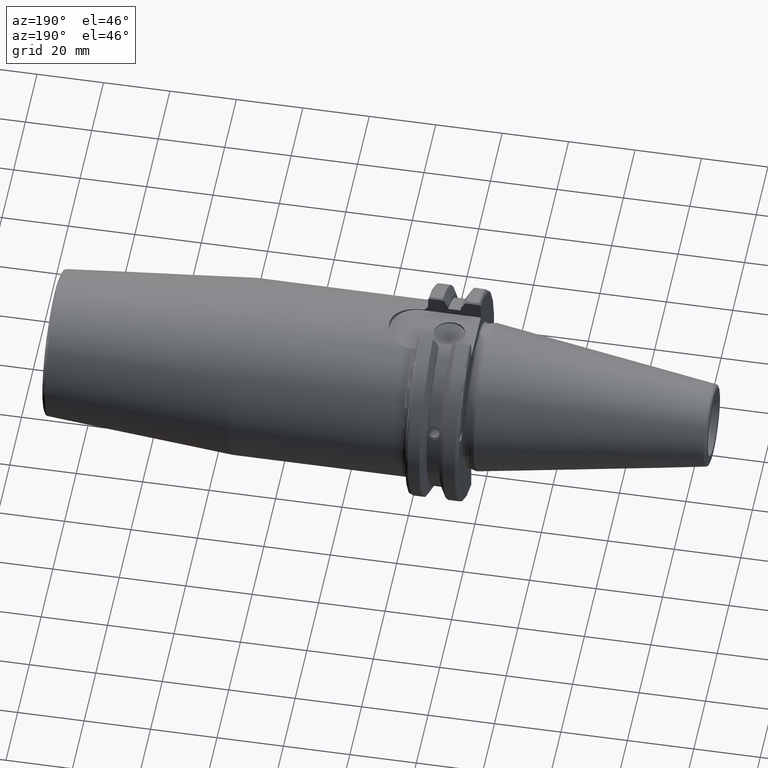
[diagram: clean part render]
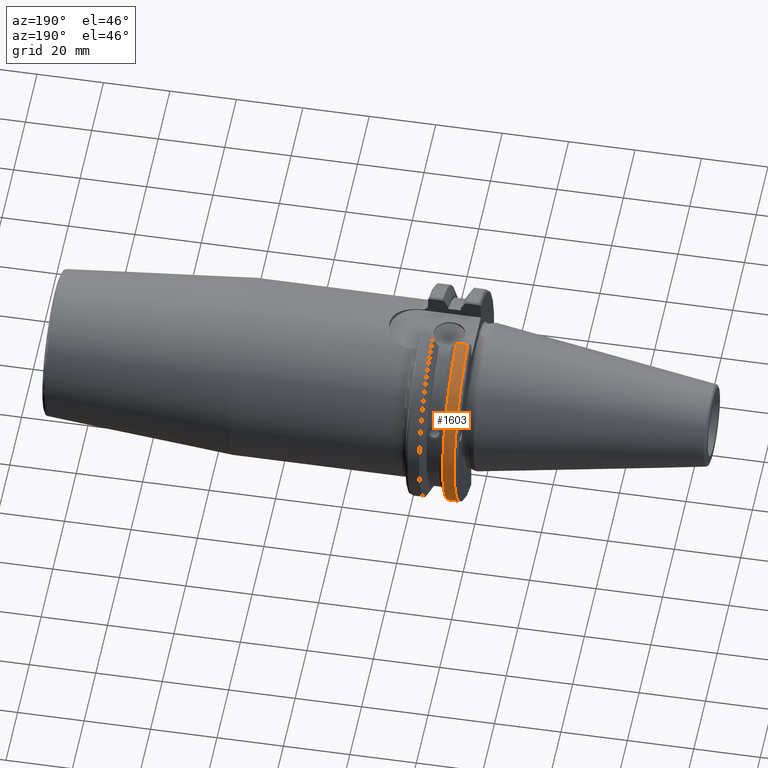
[diagram: same view with one face highlighted and labeled with its STEP entity id]
A machine part, auxiliary view. The second image highlights one B-rep face of the part: STEP entity #1603.
In plain terms, the highlighted cylindrical surface (partial cylindrical patch) has radius 31.75 mm, axis along (1, 0, 0).
Its self-contained STEP definition (entity closure, byte-faithful):
#201=FACE_OUTER_BOUND('',#307,.T.);
#307=EDGE_LOOP('',(#1424,#1425,#1426,#1427));
#365=CIRCLE('',#1741,31.75);
#385=CIRCLE('',#1785,31.75);
#474=LINE('',#3087,#562);
#485=LINE('',#3132,#573);
#562=VECTOR('',#2194,10.);
#573=VECTOR('',#2241,10.);
#710=VERTEX_POINT('',#2822);
#711=VERTEX_POINT('',#2826);
#758=VERTEX_POINT('',#3061);
#759=VERTEX_POINT('',#3070);
#903=EDGE_CURVE('',#710,#711,#365,.T.);
#976=EDGE_CURVE('',#758,#759,#385,.T.);
#979=EDGE_CURVE('',#759,#710,#474,.T.);
#999=EDGE_CURVE('',#711,#758,#485,.T.);
#1424=ORIENTED_EDGE('',*,*,#976,.F.);
#1425=ORIENTED_EDGE('',*,*,#999,.F.);
#1426=ORIENTED_EDGE('',*,*,#903,.F.);
#1427=ORIENTED_EDGE('',*,*,#979,.F.);
#1523=CYLINDRICAL_SURFACE('',#1805,31.75);
#1603=ADVANCED_FACE('',(#201),#1523,.T.);
#1741=AXIS2_PLACEMENT_3D('',#2827,#2072,#2073);
#1785=AXIS2_PLACEMENT_3D('',#3071,#2190,#2191);
#1805=AXIS2_PLACEMENT_3D('',#3133,#2242,#2243);
#2072=DIRECTION('center_axis',(1.,0.,0.));
#2073=DIRECTION('ref_axis',(0.,0.,-1.));
#2190=DIRECTION('center_axis',(-1.,0.,0.));
#2191=DIRECTION('ref_axis',(0.,1.,1.60812264967664E-16));
#2194=DIRECTION('',(1.,0.,0.));
#2241=DIRECTION('',(-1.,0.,0.));
#2242=DIRECTION('center_axis',(1.,0.,0.));
#2243=DIRECTION('ref_axis',(0.,1.,0.));
#2822=CARTESIAN_POINT('',(7.60793323092436,8.67204822802685,-30.5427254764662));
#2826=CARTESIAN_POINT('',(7.60793323092436,8.67204822802685,30.5427254764662));
#2827=CARTESIAN_POINT('Origin',(7.60793323092436,0.,0.));
#3061=CARTESIAN_POINT('',(4.175,8.67204822802685,30.5427254764662));
#3070=CARTESIAN_POINT('',(4.175,8.67204822802685,-30.5427254764662));
#3071=CARTESIAN_POINT('Origin',(4.175,0.,0.));
#3087=CARTESIAN_POINT('',(5.39146661546218,8.67204822802685,-30.5427254764662));
#3132=CARTESIAN_POINT('',(5.39146661546218,8.67204822802685,30.5427254764662));
#3133=CARTESIAN_POINT('Origin',(5.39146661546218,0.,0.));